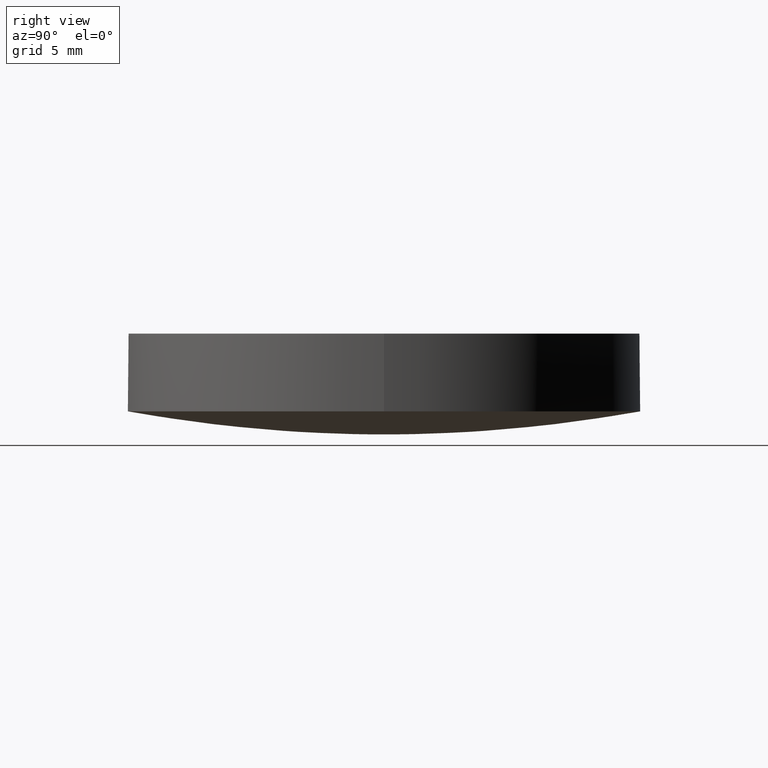
[diagram: clean part render]
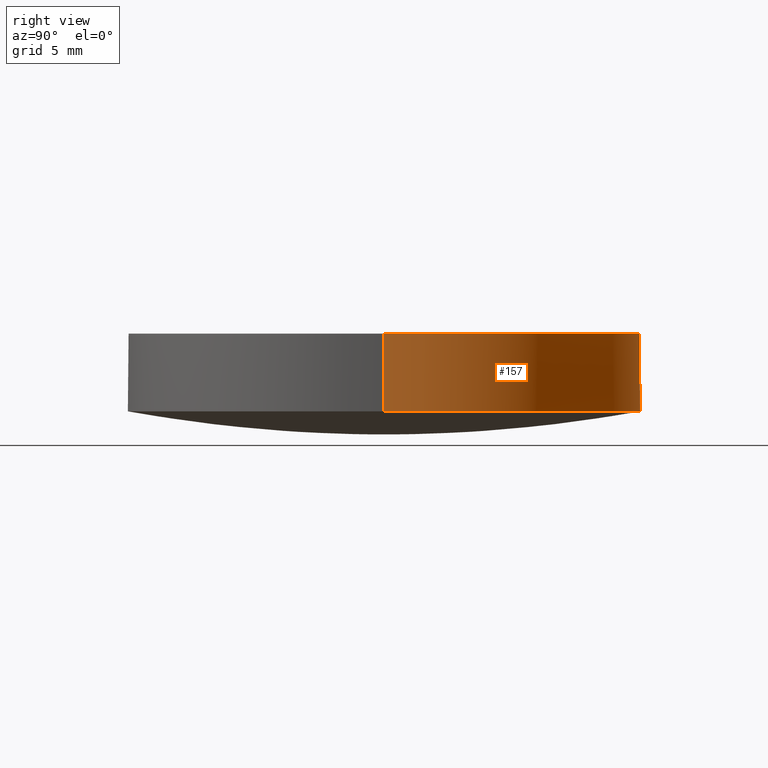
[diagram: same view with one face highlighted and labeled with its STEP entity id]
A machine part, right view. The second image highlights one B-rep face of the part: STEP entity #157.
In plain terms, the highlighted cylindrical surface (partial cylindrical patch) has radius 12.7 mm, axis along (0, 0, 1).
Its self-contained STEP definition (entity closure, byte-faithful):
#9 = CARTESIAN_POINT ( 'NONE',  ( -3.851859888774471706E-31, 12.70000000000000284, 1.142824642375869892 ) ) ;
#11 = DIRECTION ( 'NONE',  ( 1.000000000000000000, 0.000000000000000000, 0.000000000000000000 ) ) ;
#25 = CIRCLE ( 'NONE', #212, 12.70000000000000284 ) ;
#41 = EDGE_CURVE ( 'NONE', #79, #292, #296, .T. ) ;
#42 = ORIENTED_EDGE ( 'NONE', *, *, #240, .F. ) ;
#70 = ORIENTED_EDGE ( 'NONE', *, *, #326, .F. ) ;
#71 = VECTOR ( 'NONE', #331, 1000.000000000000000 ) ;
#74 = LINE ( 'NONE', #297, #260 ) ;
#75 = CARTESIAN_POINT ( 'NONE',  ( 8.881784197001250351E-16, -8.881784197001250351E-16, 5.000000000000000000 ) ) ;
#79 = VERTEX_POINT ( 'NONE', #394 ) ;
#110 = ORIENTED_EDGE ( 'NONE', *, *, #170, .T. ) ;
#122 = VERTEX_POINT ( 'NONE', #9 ) ;
#133 = CARTESIAN_POINT ( 'NONE',  ( 12.70000000000000462, -8.881784197001248379E-16, 1.142824642375869892 ) ) ;
#141 = CARTESIAN_POINT ( 'NONE',  ( 8.881784197001250351E-16, -8.881784197001250351E-16, 1.142824642375869892 ) ) ;
#148 = CARTESIAN_POINT ( 'NONE',  ( 1.734723475976807094E-15, -1.345898117247522881E-15, 1.142824642375869892 ) ) ;
#151 = AXIS2_PLACEMENT_3D ( 'NONE', #141, #398, #206 ) ;
#157 = ADVANCED_FACE ( 'NONE', ( #294 ), #328, .T. ) ;
#170 = EDGE_CURVE ( 'NONE', #292, #337, #238, .T. ) ;
#176 = ORIENTED_EDGE ( 'NONE', *, *, #41, .T. ) ;
#190 = VERTEX_POINT ( 'NONE', #133 ) ;
#192 = AXIS2_PLACEMENT_3D ( 'NONE', #148, #309, #302 ) ;
#200 = CARTESIAN_POINT ( 'NONE',  ( -12.69999999999999751, 6.671230152170134961E-16, 5.000000000000000000 ) ) ;
#206 = DIRECTION ( 'NONE',  ( 1.000000000000000000, 0.000000000000000000, 0.000000000000000000 ) ) ;
#208 = CARTESIAN_POINT ( 'NONE',  ( -12.69999999999999751, 6.671230152170134961E-16, 1.142824642375869892 ) ) ;
#212 = AXIS2_PLACEMENT_3D ( 'NONE', #386, #283, #318 ) ;
#226 = ORIENTED_EDGE ( 'NONE', *, *, #388, .F. ) ;
#238 = CIRCLE ( 'NONE', #305, 12.69999999999999929 ) ;
#239 = DIRECTION ( 'NONE',  ( -0.000000000000000000, -0.000000000000000000, -1.000000000000000000 ) ) ;
#240 = EDGE_CURVE ( 'NONE', #122, #190, #25, .T. ) ;
#260 = VECTOR ( 'NONE', #345, 1000.000000000000000 ) ;
#283 = DIRECTION ( 'NONE',  ( -0.000000000000000000, -0.000000000000000000, -1.000000000000000000 ) ) ;
#292 = VERTEX_POINT ( 'NONE', #200 ) ;
#294 = FACE_OUTER_BOUND ( 'NONE', #385, .T. ) ;
#296 = LINE ( 'NONE', #208, #71 ) ;
#297 = CARTESIAN_POINT ( 'NONE',  ( 12.70000000000000107, -8.881784197001250351E-16, 1.142824642375869892 ) ) ;
#302 = DIRECTION ( 'NONE',  ( -1.000000000000000000, 0.000000000000000000, 0.000000000000000000 ) ) ;
#305 = AXIS2_PLACEMENT_3D ( 'NONE', #75, #239, #11 ) ;
#309 = DIRECTION ( 'NONE',  ( -0.000000000000000000, -0.000000000000000000, -1.000000000000000000 ) ) ;
#318 = DIRECTION ( 'NONE',  ( -1.000000000000000000, 0.000000000000000000, 0.000000000000000000 ) ) ;
#324 = CIRCLE ( 'NONE', #192, 12.70000000000000284 ) ;
#326 = EDGE_CURVE ( 'NONE', #190, #337, #74, .T. ) ;
#328 = CYLINDRICAL_SURFACE ( 'NONE', #151, 12.69999999999999929 ) ;
#331 = DIRECTION ( 'NONE',  ( 0.000000000000000000, 0.000000000000000000, 1.000000000000000000 ) ) ;
#337 = VERTEX_POINT ( 'NONE', #370 ) ;
#345 = DIRECTION ( 'NONE',  ( 0.000000000000000000, 0.000000000000000000, 1.000000000000000000 ) ) ;
#370 = CARTESIAN_POINT ( 'NONE',  ( 12.70000000000000107, -8.881784197001250351E-16, 5.000000000000000000 ) ) ;
#385 = EDGE_LOOP ( 'NONE', ( #226, #176, #110, #70, #42 ) ) ;
#386 = CARTESIAN_POINT ( 'NONE',  ( 1.734723475976807094E-15, -1.345898117247522881E-15, 1.142824642375869892 ) ) ;
#388 = EDGE_CURVE ( 'NONE', #79, #122, #324, .T. ) ;
#394 = CARTESIAN_POINT ( 'NONE',  ( -12.70000000000000107, 6.671230152170136933E-16, 1.142824642375869892 ) ) ;
#398 = DIRECTION ( 'NONE',  ( 0.000000000000000000, 0.000000000000000000, 1.000000000000000000 ) ) ;